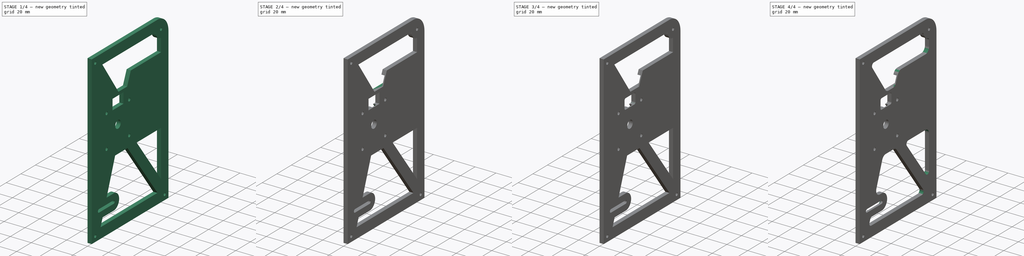
[diagram: build sequence overview — one tinted view per stage of 4, left to right]
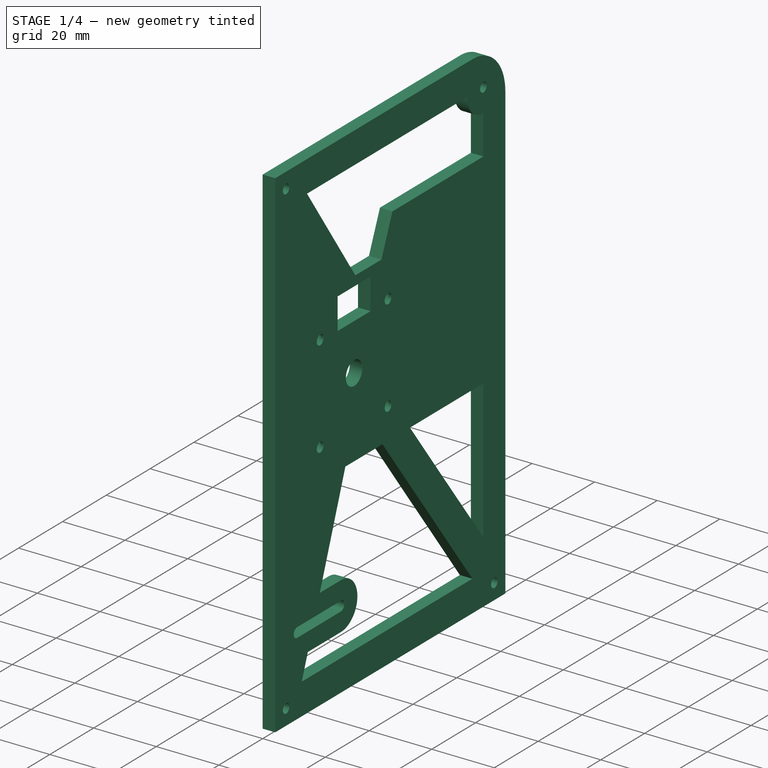
[diagram: stage 1 of 4 — iso view after this stage's code; geometry added in this stage tinted green]
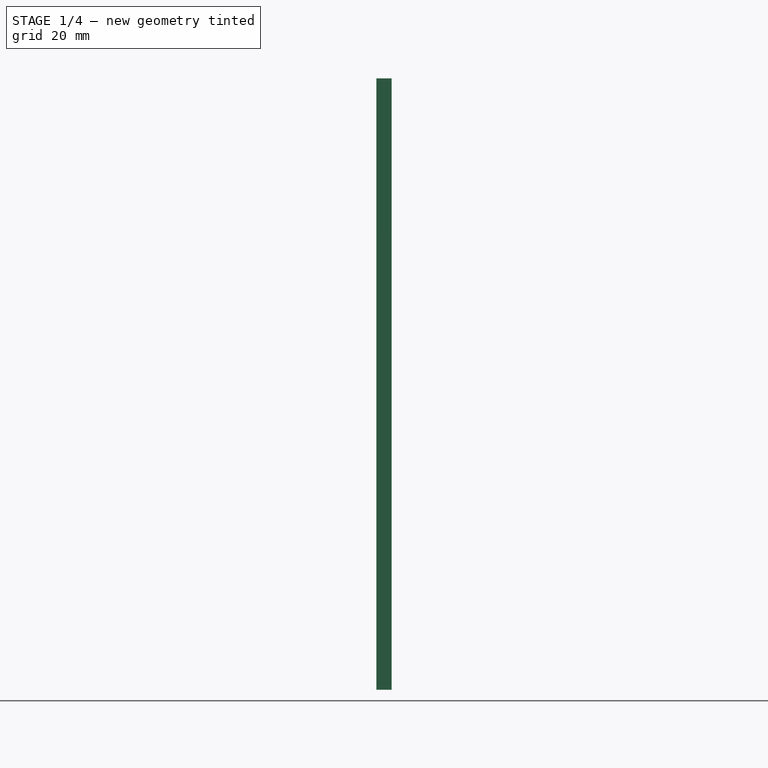
[diagram: stage 1 of 4 — front view after this stage's code; geometry added in this stage tinted green]
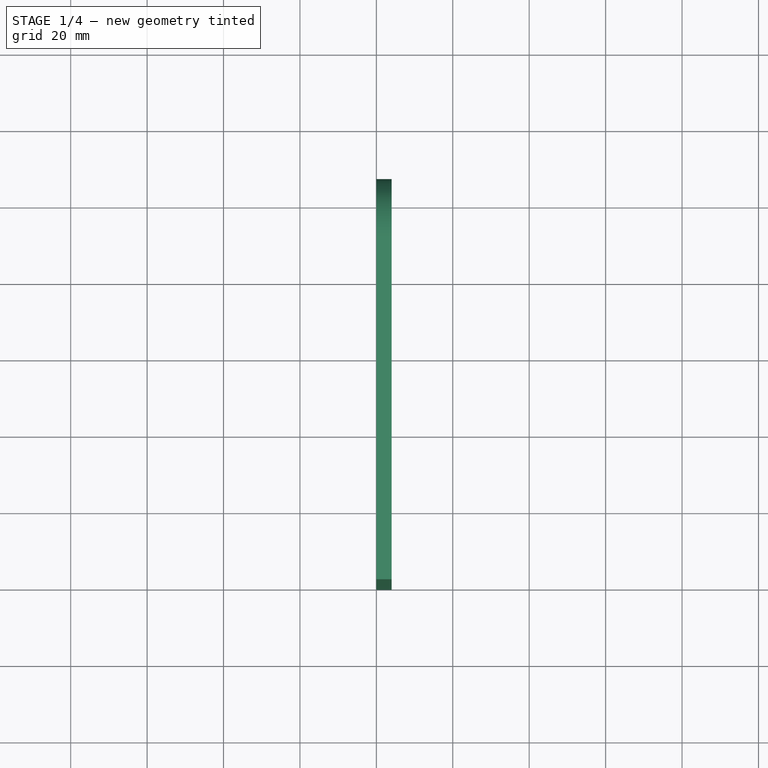
[diagram: stage 1 of 4 — top view after this stage's code; geometry added in this stage tinted green]
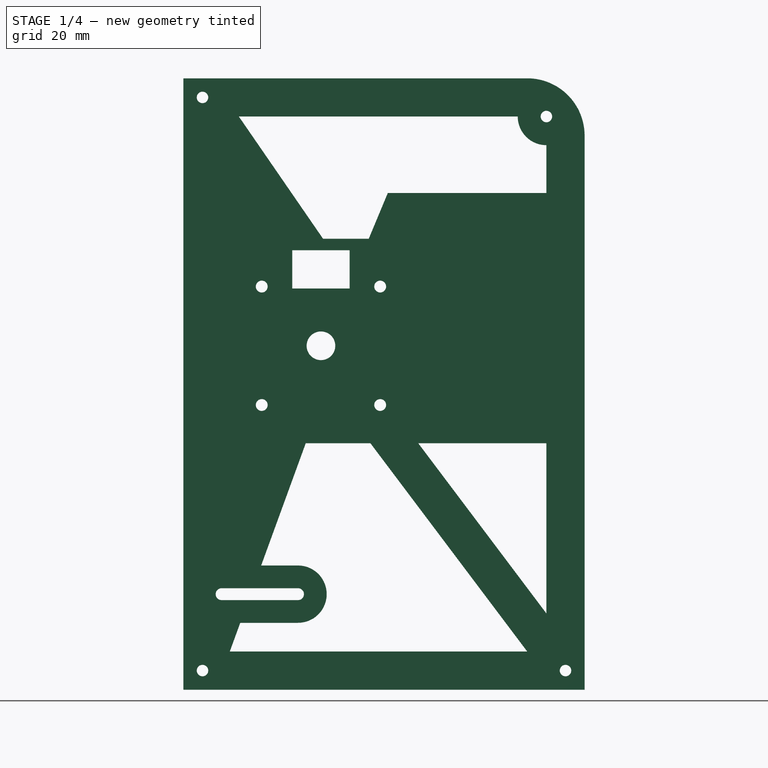
[diagram: stage 1 of 4 — right view after this stage's code; geometry added in this stage tinted green]
FCSTD DOCUMENT  (FreeCAD 1.0R39109 (Git))
Label: sideMotor
License: All rights reserved
LicenseURL: https://en.wikipedia.org/wiki/All_rights_reserved
objects: Sketcher::SketchObject×4, PartDesign::Fillet×4, PartDesign::Chamfer×3, PartDesign::Pad×2, PartDesign::Pocket×2, PartDesign::Body×1
note: 42 computed .brp shape members not serialized (recipe doc carries the construction recipe); baked Part::Feature solids carry a one-line shape summary decoded from their .brp

FEATURE [Sketcher::SketchObject] Sketch
  ArcFitTolerance = 1e-06
  AttachmentSupport = -> [YZ_Plane]
  FullyConstrained = true
  MakeInternals = false
  MapMode = 5
  Placement = pos=(0,0,0) rot=(0.57735,0.57735,0.57735;2.0944rad)
  sketch-geometry (55):
    g0: LineSegment StartX=0 StartY=0 StartZ=0 EndX=105 EndY=0 EndZ=0
    g1: LineSegment StartX=0 StartY=160 StartZ=0 EndX=0 EndY=0 EndZ=0
    g2: Circle CenterX=36 CenterY=90 CenterZ=0 NormalX=0 NormalY=0 NormalZ=1 AngleXU=0 Radius=3.75
    g3: Circle CenterX=5 CenterY=155 CenterZ=0 NormalX=0 NormalY=0 NormalZ=1 AngleXU=0 Radius=1.5
    g4: Circle CenterX=95 CenterY=150 CenterZ=0 NormalX=0 NormalY=0 NormalZ=1 AngleXU=0 Radius=1.5
    g5: Circle CenterX=100 CenterY=5 CenterZ=0 NormalX=0 NormalY=0 NormalZ=1 AngleXU=0 Radius=1.5
    g6: Circle CenterX=5 CenterY=5 CenterZ=0 NormalX=0 NormalY=0 NormalZ=1 AngleXU=0 Radius=1.5
    g7: ArcOfCircle CenterX=10 CenterY=25 CenterZ=0 NormalX=0 NormalY=0 NormalZ=1 AngleXU=0 Radius=1.55 StartAngle=1.5708 EndAngle=4.71239
    g8: ArcOfCircle CenterX=30 CenterY=25 CenterZ=0 NormalX=0 NormalY=0 NormalZ=1 AngleXU=0 Radius=1.55 StartAngle=4.71239 EndAngle=7.85398
    g9: LineSegment StartX=10 StartY=26.55 StartZ=0 EndX=30 EndY=26.55 EndZ=0
    g10: LineSegment StartX=10 StartY=23.45 StartZ=0 EndX=30 EndY=23.45 EndZ=0
    g11: LineSegment [constr] StartX=20.5 StartY=74.5 StartZ=0 EndX=51.5 EndY=74.5 EndZ=0
    g12: LineSegment [constr] StartX=51.5 StartY=74.5 StartZ=0 EndX=51.5 EndY=105.5 EndZ=0
    g13: LineSegment [constr] StartX=51.5 StartY=105.5 StartZ=0 EndX=20.5 EndY=105.5 EndZ=0
    g14: LineSegment [constr] StartX=20.5 StartY=105.5 StartZ=0 EndX=20.5 EndY=74.5 EndZ=0
    g15: GeomPoint [constr] X=36 Y=90 Z=0
    g16: Circle CenterX=20.5 CenterY=105.5 CenterZ=0 NormalX=0 NormalY=0 NormalZ=1 AngleXU=0 Radius=1.55
    g17: Circle CenterX=51.5 CenterY=105.5 CenterZ=0 NormalX=0 NormalY=0 NormalZ=1 AngleXU=0 Radius=1.55
    g18: Circle CenterX=51.5 CenterY=74.5 CenterZ=0 NormalX=0 NormalY=0 NormalZ=1 AngleXU=0 Radius=1.55
    g19: Circle CenterX=20.5 CenterY=74.5 CenterZ=0 NormalX=0 NormalY=0 NormalZ=1 AngleXU=0 Radius=1.55
    g20: LineSegment StartX=0 StartY=160 StartZ=0 EndX=90 EndY=160 EndZ=0
    g21: LineSegment StartX=105 StartY=0 StartZ=0 EndX=105 EndY=145 EndZ=0
    g22: LineSegment [constr] StartX=90 StartY=160 StartZ=0 EndX=105 EndY=160 EndZ=0
    g23: LineSegment [constr] StartX=105 StartY=145 StartZ=0 EndX=105 EndY=160 EndZ=0
    g24: ArcOfCircle CenterX=90 CenterY=145 CenterZ=0 NormalX=0 NormalY=0 NormalZ=1 AngleXU=0 Radius=15 StartAngle=0 EndAngle=1.5708
    g25: LineSegment [constr] StartX=36 StartY=90 StartZ=0 EndX=100 EndY=5 EndZ=0
    g26: LineSegment [constr] StartX=36 StartY=90 StartZ=0 EndX=5 EndY=5 EndZ=0
    g27: ArcOfCircle CenterX=30 CenterY=25 CenterZ=0 NormalX=0 NormalY=0 NormalZ=1 AngleXU=0 Radius=7.5 StartAngle=4.71239 EndAngle=7.85398
    g28: LineSegment StartX=30 StartY=32.5 StartZ=0 EndX=20.3516 EndY=32.5 EndZ=0
    g29: LineSegment StartX=30 StartY=17.5 StartZ=0 EndX=14.881 EndY=17.5 EndZ=0
    g30: LineSegment StartX=61.4588 StartY=64.5 StartZ=0 EndX=95 EndY=64.5 EndZ=0
    g31: LineSegment StartX=95 StartY=64.5 StartZ=0 EndX=95 EndY=19.9531 EndZ=0
    g32: LineSegment StartX=32.0221 StartY=64.5 StartZ=0 EndX=20.3516 EndY=32.5 EndZ=0
    g33: LineSegment StartX=14.881 StartY=17.5 StartZ=0 EndX=12.1457 EndY=10 EndZ=0
    g34: LineSegment StartX=12.1457 StartY=10 StartZ=0 EndX=89.9765 EndY=10 EndZ=0
    g35: LineSegment [constr] StartX=105 StartY=64.5 StartZ=0 EndX=0 EndY=64.5 EndZ=0
    g36: LineSegment StartX=61.4588 StartY=64.5 StartZ=0 EndX=95 EndY=19.9531 EndZ=0
    g37: LineSegment StartX=89.9765 StartY=10 StartZ=0 EndX=48.9412 EndY=64.5 EndZ=0
    g38: LineSegment StartX=48.9412 StartY=64.5 StartZ=0 EndX=32.0221 EndY=64.5 EndZ=0
    g39: LineSegment [constr] StartX=30 StartY=25 StartZ=0 EndX=30 EndY=32.5 EndZ=0
    g40: LineSegment [constr] StartX=30 StartY=25 StartZ=0 EndX=30 EndY=17.5 EndZ=0
    g41: LineSegment [constr] StartX=36 StartY=90 StartZ=0 EndX=36 EndY=110 EndZ=0
    g42: LineSegment StartX=43.5 StartY=105 StartZ=0 EndX=43.5 EndY=115 EndZ=0
    g43: LineSegment StartX=43.5 StartY=115 StartZ=0 EndX=28.5 EndY=115 EndZ=0
    g44: LineSegment StartX=28.5 StartY=115 StartZ=0 EndX=28.5 EndY=105 EndZ=0
    g45: LineSegment StartX=28.5 StartY=105 StartZ=0 EndX=43.5 EndY=105 EndZ=0
    g46: GeomPoint [constr] X=36 Y=110 Z=0
    g47: LineSegment [constr] StartX=36 StartY=110 StartZ=0 EndX=5 EndY=155 EndZ=0
    g48: LineSegment StartX=14.516 StartY=150 StartZ=0 EndX=36.5605 EndY=118 EndZ=0
    g49: LineSegment StartX=14.516 StartY=150 StartZ=0 EndX=87.5 EndY=150 EndZ=0
    g50: LineSegment StartX=48.5 StartY=118 StartZ=0 EndX=36.5605 EndY=118 EndZ=0
    g51: LineSegment StartX=48.5 StartY=118 StartZ=0 EndX=53.5 EndY=130 EndZ=0
    g52: LineSegment StartX=53.5 StartY=130 StartZ=0 EndX=95 EndY=130 EndZ=0
    g53: LineSegment StartX=95 StartY=130 StartZ=0 EndX=95 EndY=142.5 EndZ=0
    g54: ArcOfCircle CenterX=95 CenterY=150 CenterZ=0 NormalX=0 NormalY=0 NormalZ=1 AngleXU=0 Radius=7.5 StartAngle=3.14159 EndAngle=4.71239
  constraints (148):
    c: Coincident(g1,g0)
    c: Horizontal(g0)
    c: Vertical(g1)
    c: Coincident(g0,g-1)
    c: Tangent(g7,g9) = 1.5708
    c: Tangent(g7,g10) = -1.5708
    c: Tangent(g8,g9) = 1.5708
    c: Tangent(g8,g10) = -1.5708
    c: Equal(g7,g8)
    c: Horizontal(g10)
    c: DistanceY(g-1,g2) = 90
    c: DistanceX(g0,g0) = 105
    c: DistanceY(g1,g1) = 160
    c: Diameter(g2) = 7.5
    c: Distance(g2,g1) = 36
    c: Diameter(g3) = 3
    c: Coincident(g11,g12)
    c: Coincident(g12,g13)
    c: Coincident(g13,g14)
    c: Coincident(g14,g11)
    c: Horizontal(g11)
    c: Horizontal(g13)
    c: Vertical(g12)
    c: Vertical(g14)
    c: Symmetric(g13,g11,g15)
    c: Coincident(g15,g2)
    c: DistanceY(g14,g14) = 31
    c: DistanceX(g13,g13) = 31
    c: Coincident(g16,g13)
    c: Diameter(g16) = 3.1
    c: Coincident(g17,g12)
    c: Coincident(g18,g11)
    c: Coincident(g19,g11)
    c: Equal(g16,g17)
    c: Equal(g17,g18)
    c: Equal(g18,g19)
    c: DistanceY(g-1,g7) = 25
    c: Distance(g10,g9) = 3.1
    c: DistanceX(g7,g8) = 20
    c: Distance(g7,g1) = 10
    c: Equal(g3,g4)
    c: Equal(g4,g5)
    c: Equal(g5,g6)
    c: Distance(g3,g1) = 5
    c: Distance(g6,g1) = 5
    c: Distance(g6,g0) = 5
    c: Distance(g5,g0) = 5
    c: Coincident(g20,g1)
    c: Horizontal(g20)
    c: Coincident(g21,g0)
    c: Vertical(g21)
    c: Coincident(g22,g20)
    c: Horizontal(g22)
    c: Coincident(g23,g21)
    c: Vertical(g23)
    c: Coincident(g22,g23)
    c: Coincident(g24,g20)
    c: Coincident(g24,g21)
    c: Distance(g5,g21) = 5
    c: Distance(g3,g20) = 5
    c: DistanceX(g22,g22) = 15
    c: DistanceY(g23,g23) = 15
    c: Distance(g4,g23) = 10
    c: Distance(g4,g22) = 10
    c: Distance(g24,g21) = 15
    c: Coincident(g25,g2)
    c: Coincident(g25,g5)
    c: Coincident(g26,g2)
    c: Coincident(g26,g6)
    c: Coincident(g27,g8)
    c: Coincident(g28,g27)
    c: Horizontal(g28)
    c: Coincident(g29,g27)
    c: Horizontal(g29)
    c: Horizontal(g30)
    c: Coincident(g31,g30)
    c: Vertical(g31)
    c: Coincident(g33,g29)
    c: Coincident(g34,g33)
    c: Horizontal(g34)
    c: Coincident(g32,g28)
    c: Parallel(g32,g26)
    c: Parallel(g33,g26)
    c: PointOnObject(g35,g1)
    c: Horizontal(g35)
    c: PointOnObject(g35,g21)
    c: Coincident(g36,g30)
    c: Coincident(g36,g31)
    c: Coincident(g37,g34)
    c: Coincident(g38,g37)
    c: Horizontal(g38)
    c: Coincident(g38,g32)
    c: PointOnObject(g37,g35)
    c: PointOnObject(g30,g35)
    c: Parallel(g36,g25)
    c: Parallel(g25,g37)
    c: Distance(g36,g25) = 5
    c: Distance(g21,g31) = 10
    c: Distance(g0,g34) = 10
    c: Radius(g27) = 7.5
    c: Distance(g26,g32) = 5
    c: Distance(g26,g33) = 5
    c: Distance(g37,g25) = 5
    c: Coincident(g39,g8)
    c: Coincident(g39,g27)
    c: Vertical(g39)
    c: Coincident(g40,g8)
    c: Coincident(g40,g27)
    c: Vertical(g40)
    c: Distance(g11,g35) = 10
    c: Coincident(g41,g2)
    c: Vertical(g41)
    c: Coincident(g42,g43)
    c: Coincident(g43,g44)
    c: Coincident(g44,g45)
    c: Coincident(g45,g42)
    c: Vertical(g42)
    c: Vertical(g44)
    c: Horizontal(g43)
    c: Horizontal(g45)
    c: Symmetric(g44,g42,g46)
    c: Coincident(g46,g41)
    c: DistanceX(g43,g43) = 15
    c: DistanceY(g44,g44) = 10
    c: DistanceY(g2,g41) = 20
    c: Coincident(g47,g41)
    c: Coincident(g47,g3)
    c: Coincident(g49,g48)
    c: Horizontal(g49)
    c: Parallel(g48,g47)
    c: Distance(g47,g48) = 5
    c: Horizontal(g50)
    c: Coincident(g50,g48)
    c: Distance(g43,g50) = 3
    c: Distance(g20,g49) = 10
    c: Coincident(g51,g50)
    c: Coincident(g52,g51)
    c: Horizontal(g52)
    c: DistanceX(g41,g50) = 12.5
    c: Distance(g52,g50) = 12
    c: DistanceX(g50,g51) = 5
    c: Coincident(g53,g52)
    c: Vertical(g53)
    c: Distance(g21,g53) = 10
    c: Coincident(g54,g4)
    c: Coincident(g54,g53)
    c: Coincident(g54,g49)
    c: Radius(g54) = 7.5
FEATURE [PartDesign::Pad] Pad
  Direction = (1,0,0)
  Length = 4
  Length2 = 10
  Placement = pos=(0,0,0) rot=(1,1,1;2.0944rad)
  Profile = -> Sketch
  ReferenceAxis = -> Sketch [N_Axis]
  Refine = true
  Suppressed = false
  Type = 0
FEATURE [Sketcher::SketchObject] Sketch001
  ArcFitTolerance = 1e-06
  FullyConstrained = true
  MakeInternals = false
  MapMode = 5
  Placement = pos=(-2.82e-14,0,0) rot=(0.57735,0.57735,-0.57735;4.18879rad)
  sketch-geometry (24):
    g0: LineSegment [constr] StartX=105 StartY=-96.6745 StartZ=0 EndX=50 EndY=-96.6745 EndZ=0
    g1: ArcOfCircle [constr] CenterX=50 CenterY=-110.026 CenterZ=0 NormalX=0 NormalY=0 NormalZ=1 AngleXU=0 Radius=13.3514 StartAngle=1.5708 EndAngle=3.06377
    g2: LineSegment [constr] StartX=50 StartY=-96.6745 StartZ=0 EndX=50 EndY=-110.026 EndZ=0
    g3: LineSegment [constr] StartX=36.689 StartY=-108.988 StartZ=0 EndX=36.6113 EndY=-109.985 EndZ=0
    g4: LineSegment [constr] StartX=52.5 StartY=-105.5 StartZ=0 EndX=44.75 EndY=-97.75 EndZ=0
    g5: LineSegment [constr] StartX=37 StartY=-90 StartZ=0 EndX=44.75 EndY=-97.75 EndZ=0
    g6: LineSegment StartX=34.1966 StartY=-108.794 StartZ=0 EndX=34.1189 EndY=-109.791 EndZ=0
    g7: ArcOfCircle CenterX=50 CenterY=-110.026 CenterZ=0 NormalX=0 NormalY=0 NormalZ=1 AngleXU=0 Radius=15.8514 StartAngle=1.5708 EndAngle=3.06377
    g8: LineSegment StartX=105 StartY=-94.1745 StartZ=0 EndX=50 EndY=-94.1745 EndZ=0
    g9: LineSegment StartX=105 StartY=-99.1745 StartZ=0 EndX=50 EndY=-99.1745 EndZ=0
    g10: ArcOfCircle CenterX=50 CenterY=-110.026 CenterZ=0 NormalX=0 NormalY=0 NormalZ=1 AngleXU=0 Radius=10.8514 StartAngle=1.5708 EndAngle=3.06377
    g11: LineSegment StartX=39.1815 StartY=-109.182 StartZ=0 EndX=39.1037 EndY=-110.179 EndZ=0
    g12: LineSegment StartX=105 StartY=-99.1745 StartZ=0 EndX=105 EndY=-94.1745 EndZ=0
    g13: LineSegment StartX=34.1189 StartY=-109.791 StartZ=0 EndX=39.1037 EndY=-110.179 EndZ=0
    g14: LineSegment [constr] StartX=37 StartY=-115 StartZ=0 EndX=37 EndY=-105 EndZ=0
    g15: LineSegment StartX=105 StartY=-124 StartZ=0 EndX=105 EndY=-120 EndZ=0
    g16: LineSegment StartX=105 StartY=-120 StartZ=0 EndX=75 EndY=-120 EndZ=0
    g17: LineSegment StartX=75 StartY=-124 StartZ=0 EndX=105 EndY=-124 EndZ=0
    g18: LineSegment [constr] StartX=105 StartY=-122 StartZ=0 EndX=45 EndY=-122 EndZ=0
    g19: LineSegment StartX=45 StartY=-126 StartZ=0 EndX=65 EndY=-126 EndZ=0
    g20: LineSegment StartX=65 StartY=-118 StartZ=0 EndX=45 EndY=-118 EndZ=0
    g21: LineSegment StartX=75 StartY=-124 StartZ=0 EndX=65 EndY=-126 EndZ=0
    g22: LineSegment StartX=75 StartY=-120 StartZ=0 EndX=65 EndY=-118 EndZ=0
    g23: LineSegment StartX=45 StartY=-118 StartZ=0 EndX=45 EndY=-126 EndZ=0
  constraints (66):
    c: Horizontal(g0)
    c: Coincident(g1,g0)
    c: Coincident(g2,g0)
    c: Vertical(g2)
    c: Coincident(g1,g2)
    c: PointOnObject(g0,g-3)
    c: Tangent(g3,g1) = -1.5708
    c: Coincident(g4,g-5)
    c: PointOnObject(g4,g1)
    c: Coincident(g5,g-6)
    c: Coincident(g5,g4)
    c: Equal(g4,g5)
    c: Parallel(g4,g5)
    c: Tangent(g6,g7) = -1.5708
    c: Tangent(g7,g8) = -1.5708
    c: Tangent(g9,g10) = -1.5708
    c: Tangent(g10,g11) = -1.5708
    c: Parallel(g9,g8)
    c: Parallel(g8,g0)
    c: Parallel(g11,g3)
    c: Parallel(g3,g6)
    c: Coincident(g12,g9)
    c: Coincident(g12,g8)
    c: Vertical(g12)
    c: Coincident(g13,g6)
    c: Coincident(g13,g11)
    c: PointOnObject(g3,g13)
    c: Distance(g8,g9) = 5
    c: Distance(g9,g0) = 2.5
    c: Coincident(g10,g1)
    c: Coincident(g7,g1)
    c: Perpendicular(g13,g3)
    c: PointOnObject(g9,g-3)
    c: Symmetric(g-7,g-7,g14)
    c: Symmetric(g-4,g-4,g14)
    c: PointOnObject(g14,g3)
    c: Distance(g14,g13) = 5
    c: DistanceX(g9,g9) = 55
    c: Coincident(g15,g16)
    c: Coincident(g17,g15)
    c: Vertical(g15)
    c: Horizontal(g16)
    c: Horizontal(g17)
    c: Symmetric(g15,g15,g18)
    c: Horizontal(g18)
    c: Horizontal(g19)
    c: Horizontal(g20)
    c: Coincident(g21,g17)
    c: Coincident(g21,g19)
    c: Coincident(g22,g16)
    c: Coincident(g22,g20)
    c: Coincident(g23,g20)
    c: Coincident(g23,g19)
    c: Vertical(g23)
    c: Distance(g16,g17) = 4
    c: Distance(g20,g19) = 8
    c: PointOnObject(g18,g23)
    c: DistanceX(g17,g17) = 30
    c: Equal(g16,g17)
    c: DistanceX(g21,g21) = 10
    c: DistanceX(g19,g19) = 20
    c: PointOnObject(g15,g-3)
    c: Equal(g20,g19)
    c: Distance(g19,g18) = 4
    c: Distance(g6,g6) = 1
    c: PointOnObject(g-8,g20)
FEATURE [Sketcher::SketchObject] Sketch002
  ArcFitTolerance = 1e-06
  ExternalGeometry = -> [Pad]
  FullyConstrained = true
  MakeInternals = false
  MapMode = 5
  Placement = pos=(-2.82e-14,0,0) rot=(0.57735,0.57735,-0.57735;4.18879rad)
  sketch-geometry (4):
    g0: Circle CenterX=51.5 CenterY=-105.5 CenterZ=0 NormalX=0 NormalY=0 NormalZ=1 AngleXU=0 Radius=3
    g1: Circle CenterX=20.5 CenterY=-105.5 CenterZ=0 NormalX=0 NormalY=0 NormalZ=1 AngleXU=0 Radius=3
    g2: Circle CenterX=20.5 CenterY=-74.5 CenterZ=0 NormalX=0 NormalY=0 NormalZ=1 AngleXU=0 Radius=3
    g3: Circle CenterX=51.5 CenterY=-74.5 CenterZ=0 NormalX=0 NormalY=0 NormalZ=1 AngleXU=0 Radius=3
  constraints (8):
    c: Diameter(g0) = 6
    c: Equal(g1,g2)
    c: Equal(g2,g3)
    c: Equal(g3,g0)
    c: Coincident(g-5,g1)
    c: Coincident(g-4,g2)
    c: Coincident(g-3,g3)
    c: Coincident(g-6,g0)
FEATURE [PartDesign::Pocket] Pocket
  BaseFeature = -> Pad
  Direction = (1,0,0)
  Length = 3
  Length2 = 5
  Placement = pos=(0,0,0) rot=(1,1,1;2.0944rad)
  Profile = -> Sketch002
  ReferenceAxis = -> Sketch002 [N_Axis]
  Refine = true
  Suppressed = false
  Type = 0
FEATURE [PartDesign::Chamfer] Chamfer001
  Angle = 45
  Base = -> Pocket [Edge40,Edge46,Edge39,Edge33]
  BaseFeature = -> Pocket
  ChamferType = 0
  FlipDirection = false
  Placement = pos=(0,0,0) rot=(1,1,1;2.0944rad)
  Refine = true
  Size = 0.5
  Size2 = 1
  SupportTransform = false
  Suppressed = false
  UseAllEdges = false
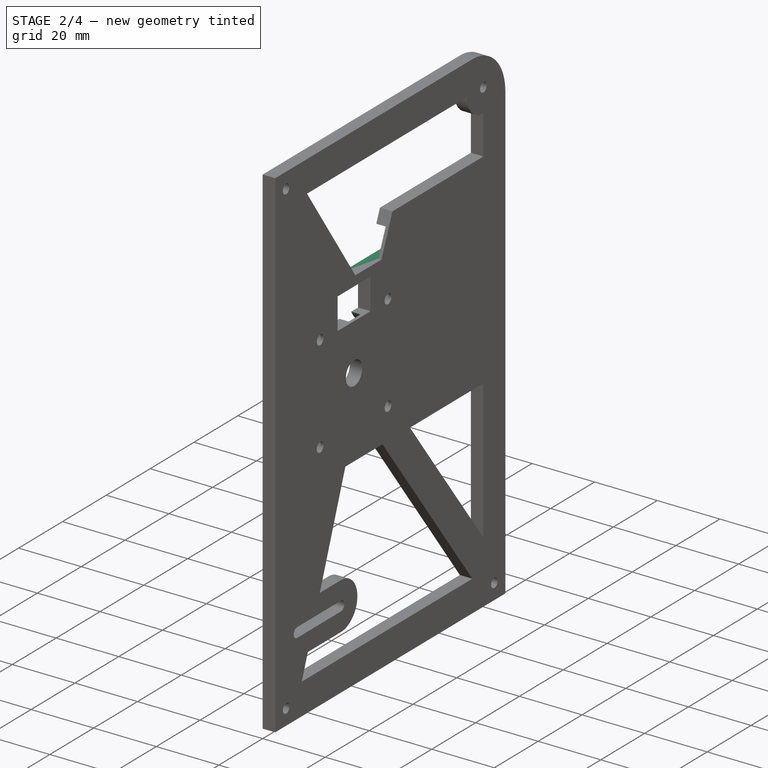
[diagram: stage 2 of 4 — iso view after this stage's code; geometry added in this stage tinted green]
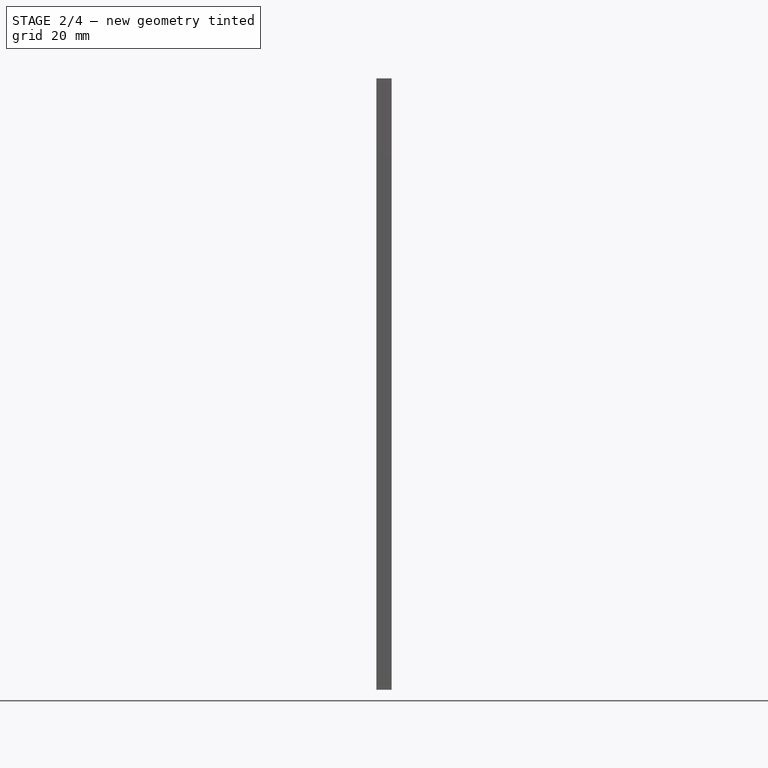
[diagram: stage 2 of 4 — front view after this stage's code; geometry added in this stage tinted green]
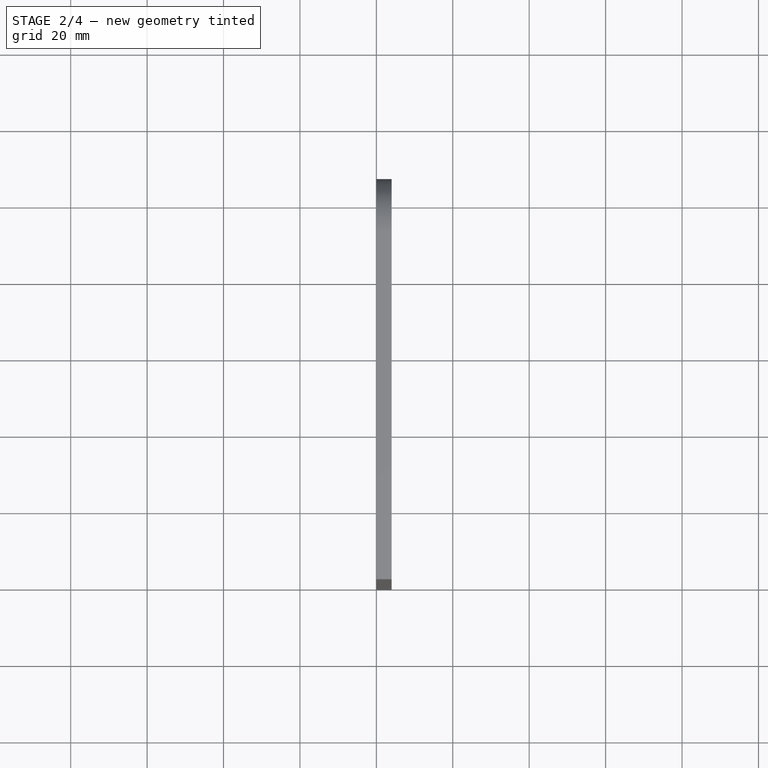
[diagram: stage 2 of 4 — top view after this stage's code; geometry added in this stage tinted green]
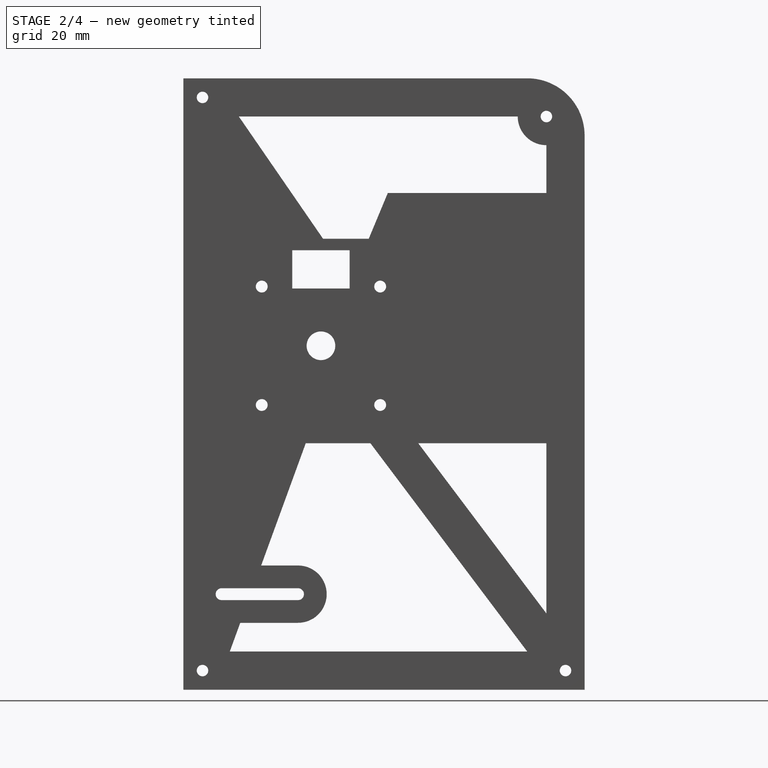
[diagram: stage 2 of 4 — right view after this stage's code; geometry added in this stage tinted green]
FEATURE [PartDesign::Pocket] Pocket001
  BaseFeature = -> Chamfer001
  Direction = (1,0,0)
  Length = 3
  Length2 = 5
  Placement = pos=(0,0,0) rot=(1,1,1;2.0944rad)
  Profile = -> Sketch001
  ReferenceAxis = -> Sketch001 [N_Axis]
  Refine = true
  Suppressed = false
  Type = 0
FEATURE [Sketcher::SketchObject] Sketch003
  ArcFitTolerance = 1e-06
  AttachmentSupport = -> [Pocket001]
  ExternalGeometry = -> [Pocket001]
  FullyConstrained = true
  MakeInternals = false
  MapMode = 5
  Placement = pos=(0,0,0) rot=(0.57735,0.57735,-0.57735;4.18879rad)
  sketch-geometry (22):
    g0: LineSegment StartX=50 StartY=-94.1745 StartZ=0 EndX=50 EndY=-96.6745 EndZ=0
    g1: LineSegment StartX=50 StartY=-96.6745 StartZ=0 EndX=57.5 EndY=-96.6745 EndZ=0
    g2: LineSegment StartX=57.5 StartY=-96.6745 StartZ=0 EndX=57.5 EndY=-94.1745 EndZ=0
    g3: LineSegment StartX=57.5 StartY=-94.1745 StartZ=0 EndX=50 EndY=-94.1745 EndZ=0
    g4: LineSegment StartX=73.75 StartY=-99.1745 StartZ=0 EndX=81.25 EndY=-99.1745 EndZ=0
    g5: LineSegment StartX=81.25 StartY=-99.1745 StartZ=0 EndX=81.25 EndY=-96.6745 EndZ=0
    g6: LineSegment StartX=81.25 StartY=-96.6745 StartZ=0 EndX=73.75 EndY=-96.6745 EndZ=0
    g7: LineSegment StartX=73.75 StartY=-96.6745 StartZ=0 EndX=73.75 EndY=-99.1745 EndZ=0
    g8: LineSegment StartX=105 StartY=-94.1745 StartZ=0 EndX=97.5 EndY=-94.1745 EndZ=0
    g9: LineSegment StartX=97.5 StartY=-94.1745 StartZ=0 EndX=97.5 EndY=-96.6745 EndZ=0
    g10: LineSegment StartX=97.5 StartY=-96.6745 StartZ=0 EndX=105 EndY=-96.6745 EndZ=0
    g11: LineSegment StartX=105 StartY=-96.6745 StartZ=0 EndX=105 EndY=-94.1745 EndZ=0
    g12: LineSegment StartX=105 StartY=-120 StartZ=0 EndX=97.5 EndY=-120 EndZ=0
    g13: LineSegment StartX=97.5 StartY=-120 StartZ=0 EndX=97.5 EndY=-121.75 EndZ=0
    g14: LineSegment StartX=97.5 StartY=-121.75 StartZ=0 EndX=105 EndY=-121.75 EndZ=0
    g15: LineSegment StartX=105 StartY=-121.75 StartZ=0 EndX=105 EndY=-120 EndZ=0
    g16: LineSegment StartX=75 StartY=-124 StartZ=0 EndX=82.5 EndY=-124 EndZ=0
    g17: LineSegment StartX=82.5 StartY=-124 StartZ=0 EndX=82.5 EndY=-122.25 EndZ=0
    g18: LineSegment StartX=82.5 StartY=-122.25 StartZ=0 EndX=75 EndY=-122.25 EndZ=0
    g19: LineSegment StartX=75 StartY=-122.25 StartZ=0 EndX=75 EndY=-124 EndZ=0
    g20: LineSegment [constr] StartX=57.5 StartY=-96.6745 StartZ=0 EndX=73.75 EndY=-96.6745 EndZ=0
    g21: LineSegment [constr] StartX=81.25 StartY=-96.6745 StartZ=0 EndX=97.5 EndY=-96.6745 EndZ=0
  constraints (60):
    c: Coincident(g0,g1)
    c: Coincident(g1,g2)
    c: Coincident(g2,g3)
    c: Coincident(g3,g0)
    c: Vertical(g0)
    c: Vertical(g2)
    c: Horizontal(g1)
    c: Horizontal(g3)
    c: Coincident(g0,g-3)
    c: Coincident(g4,g5)
    c: Coincident(g5,g6)
    c: Coincident(g6,g7)
    c: Coincident(g7,g4)
    c: Horizontal(g4)
    c: Horizontal(g6)
    c: Vertical(g5)
    c: Vertical(g7)
    c: Coincident(g8,g9)
    c: Coincident(g9,g10)
    c: Coincident(g10,g11)
    c: Coincident(g11,g8)
    c: Horizontal(g8)
    c: Horizontal(g10)
    c: Vertical(g9)
    c: Vertical(g11)
    c: Coincident(g8,g-3)
    c: Coincident(g12,g13)
    c: Coincident(g13,g14)
    c: Coincident(g14,g15)
    c: Coincident(g15,g12)
    c: Horizontal(g12)
    c: Horizontal(g14)
    c: Vertical(g13)
    c: Vertical(g15)
    c: Coincident(g12,g-5)
    c: Coincident(g16,g17)
    c: Coincident(g17,g18)
    c: Coincident(g18,g19)
    c: Coincident(g19,g16)
    c: Horizontal(g16)
    c: Horizontal(g18)
    c: Vertical(g17)
    c: Vertical(g19)
    c: Coincident(g16,g-6)
    c: Equal(g2,g7)
    c: Equal(g7,g9)
    c: Equal(g17,g13)
    c: DistanceY(g11,g11) = 2.5
    c: DistanceX(g3,g3) = 7.5
    c: DistanceX(g4,g4) = 7.5
    c: DistanceX(g12,g12) = 7.5
    c: DistanceX(g16,g16) = 7.5
    c: DistanceY(g15,g15) = 1.75
    c: DistanceX(g8,g8) = 7.5
    c: Coincident(g20,g1)
    c: Coincident(g20,g6)
    c: Coincident(g21,g5)
    c: Coincident(g21,g9)
    c: Horizontal(g21)
    c: Equal(g21,g20)
FEATURE [PartDesign::Pad] Pad001
  BaseFeature = -> Pocket001
  Direction = (-1,0,0)
  Length = 1
  Length2 = 10
  Placement = pos=(0,0,0) rot=(1,1,1;2.0944rad)
  Profile = -> Sketch003
  ReferenceAxis = -> Sketch003 [N_Axis]
  Refine = true
  Reversed = true
  Suppressed = false
  Type = 0
FEATURE [PartDesign::Chamfer] Chamfer002
  Angle = 45
  Base = -> Pad001 [Edge168,Edge144,Edge172,Edge90,Edge123]
  BaseFeature = -> Pad001
  ChamferType = 1
  FlipDirection = false
  Placement = pos=(0,0,0) rot=(1,1,1;2.0944rad)
  Refine = true
  Size = 0.8
  Size2 = 1.5
  SupportTransform = false
  Suppressed = false
  UseAllEdges = false
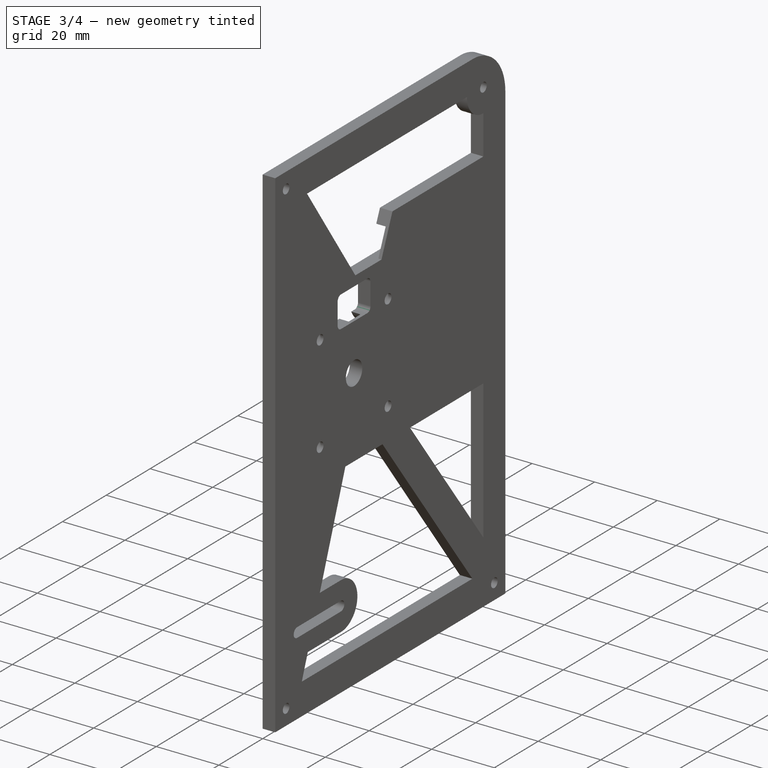
[diagram: stage 3 of 4 — iso view after this stage's code; geometry added in this stage tinted green]
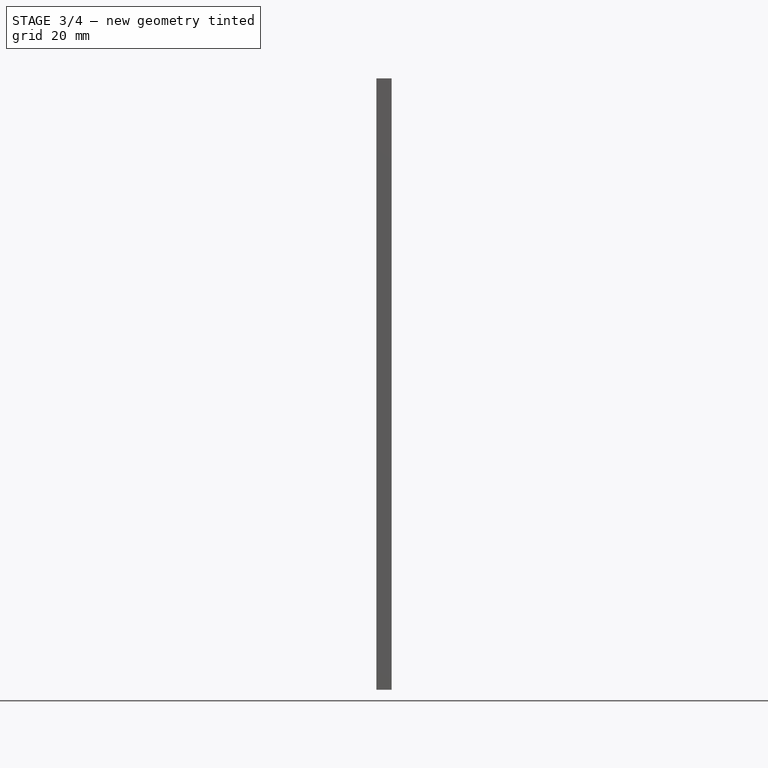
[diagram: stage 3 of 4 — front view after this stage's code; geometry added in this stage tinted green]
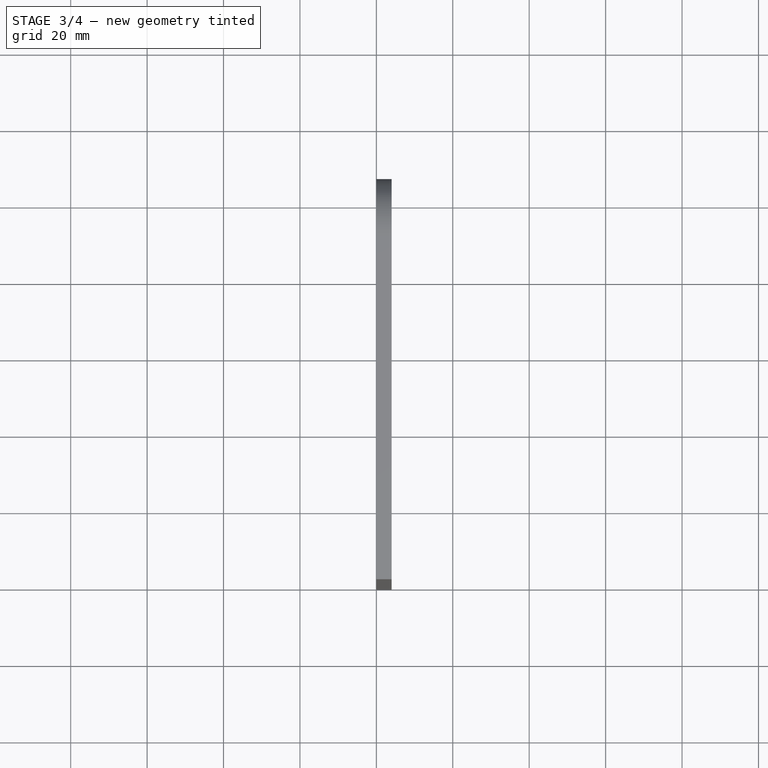
[diagram: stage 3 of 4 — top view after this stage's code; geometry added in this stage tinted green]
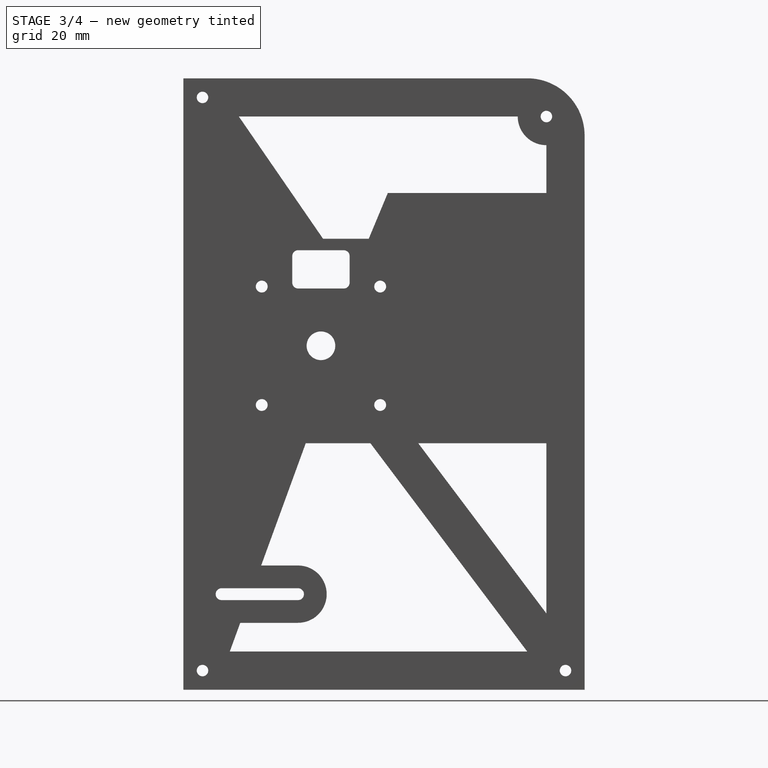
[diagram: stage 3 of 4 — right view after this stage's code; geometry added in this stage tinted green]
FEATURE [PartDesign::Fillet] Fillet
  Base = -> Chamfer002 [Edge196,Edge198,Edge197,Edge199]
  BaseFeature = -> Chamfer002
  Placement = pos=(0,0,0) rot=(1,1,1;2.0944rad)
  Radius = 1.5
  Refine = true
  SupportTransform = false
  Suppressed = false
  UseAllEdges = false
FEATURE [PartDesign::Fillet] Fillet001
  Base = -> Fillet [Edge185,Edge190,Edge120,Edge157,Edge94,Edge132,Edge108,Edge114,Edge97,Edge136]
  BaseFeature = -> Fillet
  Placement = pos=(0,0,0) rot=(1,1,1;2.0944rad)
  Radius = 1
  Refine = true
  SupportTransform = false
  Suppressed = false
  UseAllEdges = false
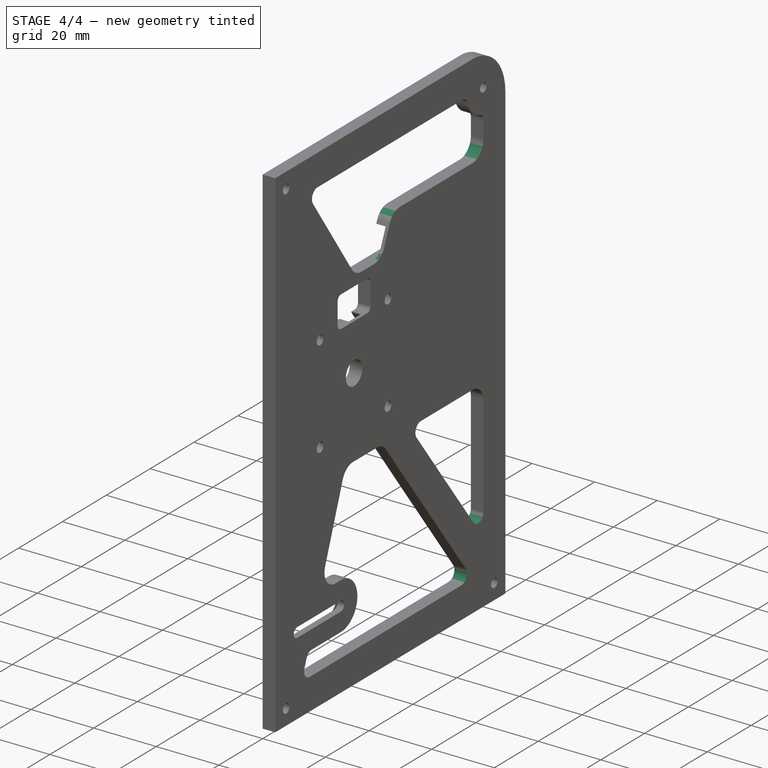
[diagram: stage 4 of 4 — iso view after this stage's code; geometry added in this stage tinted green]
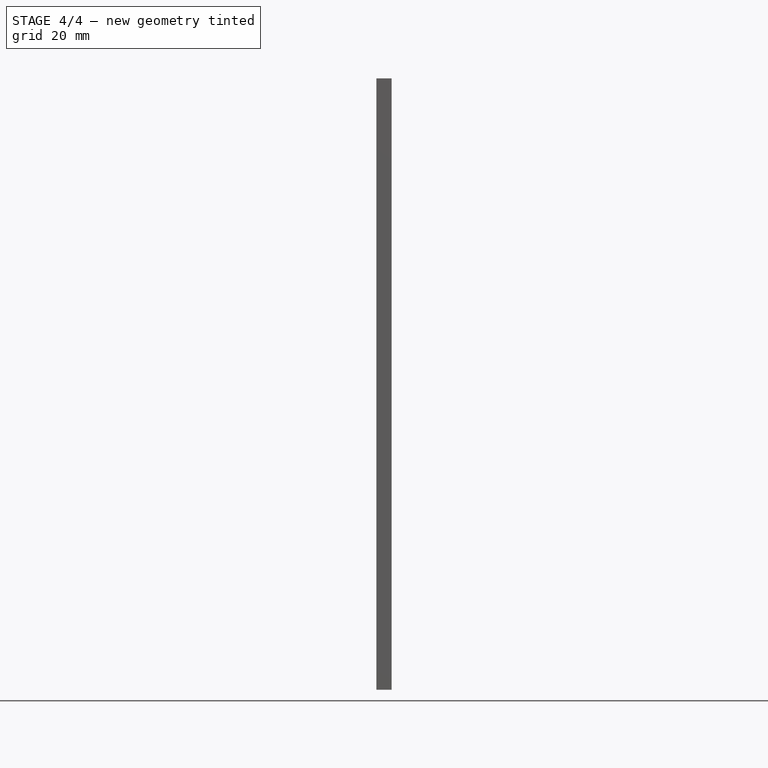
[diagram: stage 4 of 4 — front view after this stage's code; geometry added in this stage tinted green]
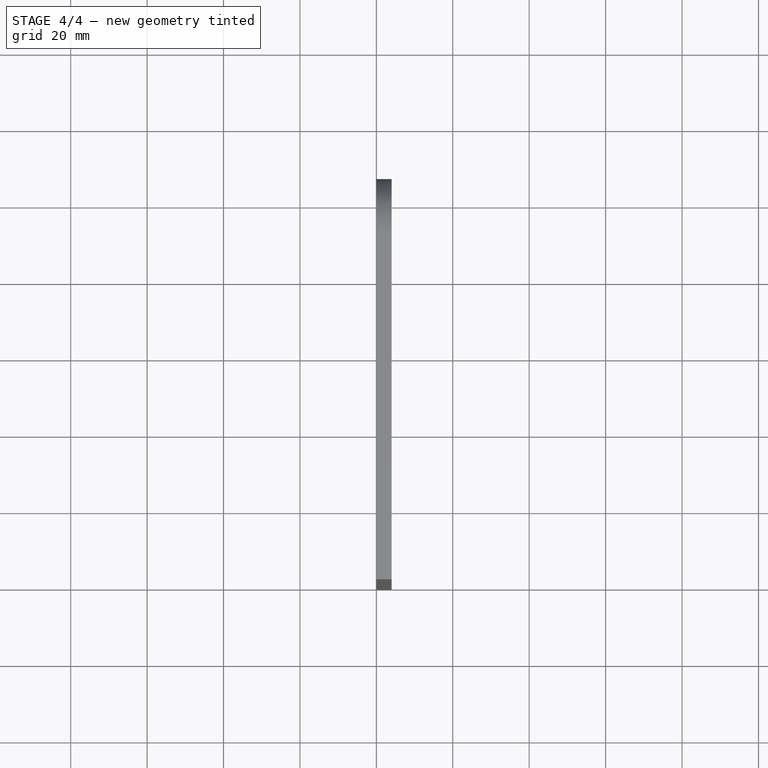
[diagram: stage 4 of 4 — top view after this stage's code; geometry added in this stage tinted green]
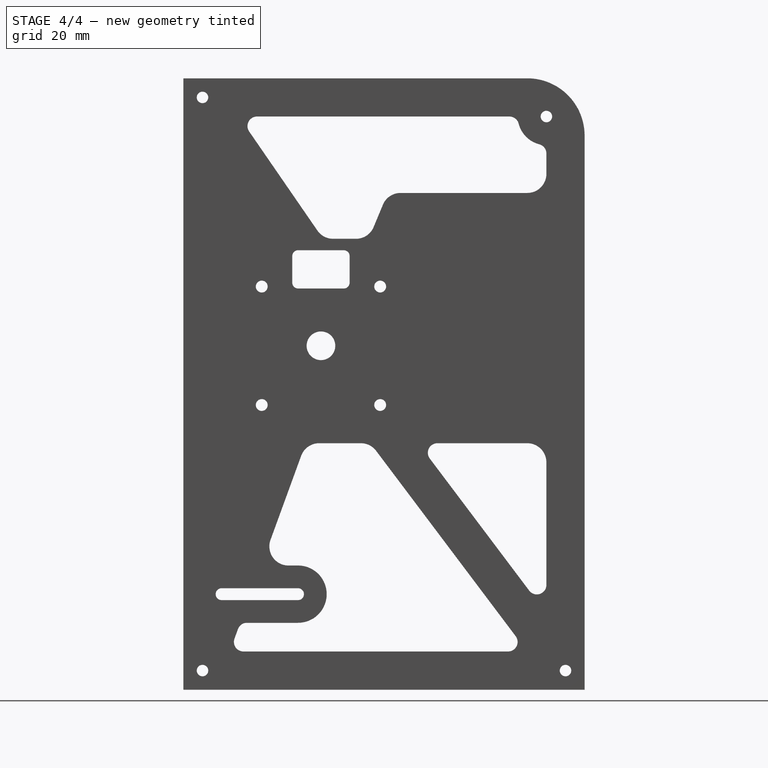
[diagram: stage 4 of 4 — right view after this stage's code; geometry added in this stage tinted green]
FEATURE [PartDesign::Fillet] Fillet002
  Base = -> Fillet001 [Edge168,Edge173,Edge152,Edge150,Edge235,Edge223,Edge225,Edge227]
  BaseFeature = -> Fillet001
  Placement = pos=(0,0,0) rot=(1,1,1;2.0944rad)
  Radius = 5
  Refine = true
  SupportTransform = false
  Suppressed = false
  UseAllEdges = false
FEATURE [PartDesign::Fillet] Fillet003
  Base = -> Fillet002 [Edge282,Edge268,Edge264,Edge286,Edge260,Edge98,Edge109,Edge105]
  BaseFeature = -> Fillet002
  Placement = pos=(0,0,0) rot=(1,1,1;2.0944rad)
  Radius = 2.5
  Refine = true
  SupportTransform = false
  Suppressed = false
  UseAllEdges = false
FEATURE [PartDesign::Chamfer] Chamfer003
  Angle = 45
  Base = -> Fillet003 [Edge66,Edge75,Edge74,Edge72,Edge73]
  BaseFeature = -> Fillet003
  ChamferType = 0
  FlipDirection = false
  Placement = pos=(0,0,0) rot=(1,1,1;2.0944rad)
  Refine = true
  Size = 2
  Size2 = 1
  SupportTransform = false
  Suppressed = false
  UseAllEdges = false
FEATURE [PartDesign::Body] Body
  AllowCompound = false
  Group = -> [Sketch,Pad,Sketch001,Sketch002,Pocket,Chamfer001,Pocket001,Sketch003,Pad001,Chamfer002,Fillet,Fillet001,Fillet002,Fillet003,Chamfer003]
  Origin = -> Origin
  Tip = -> Chamfer003
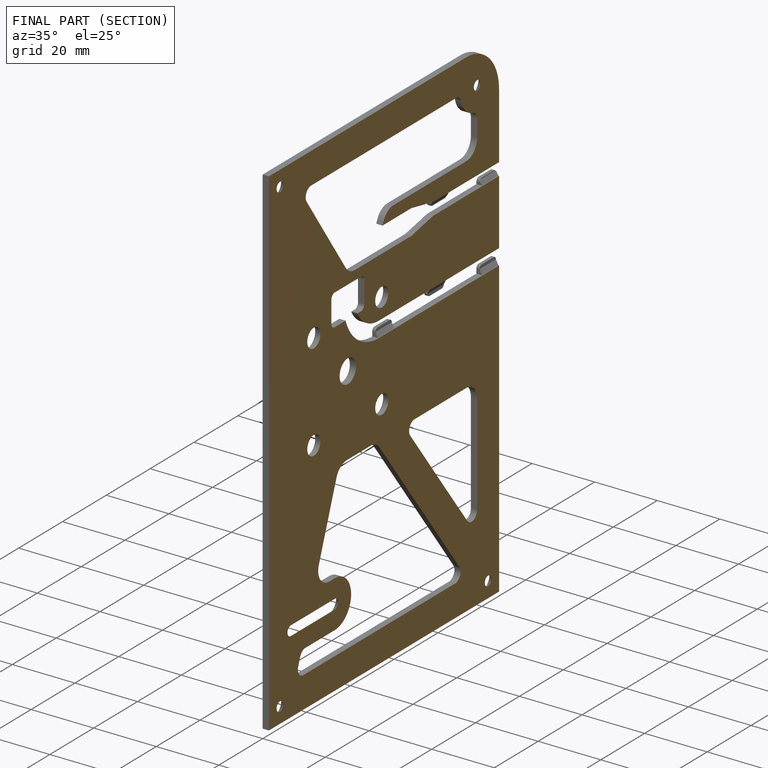
[diagram: finished part — half-section view (interior)]
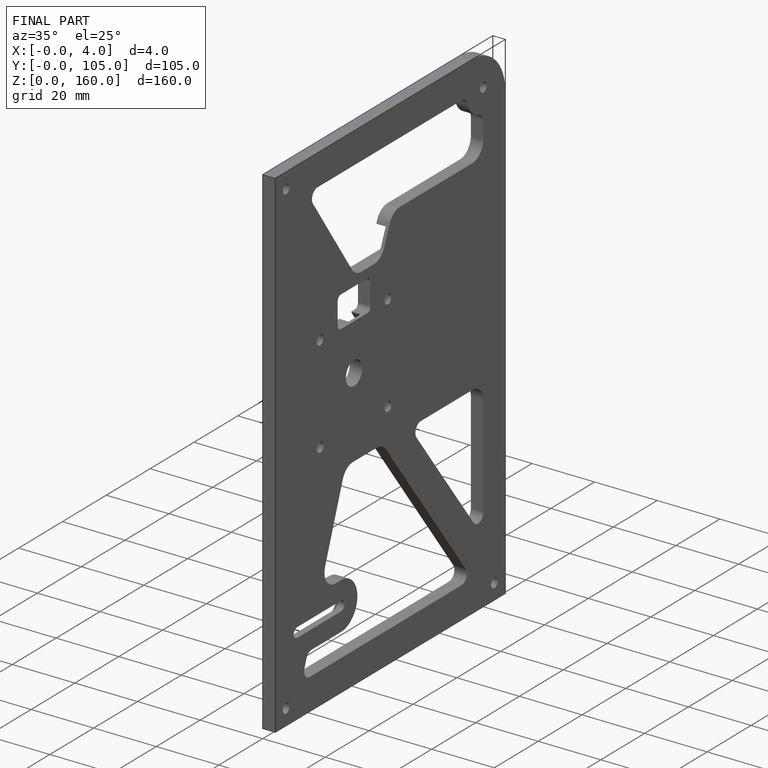
[diagram: finished part — iso view with bounding-box wireframe]
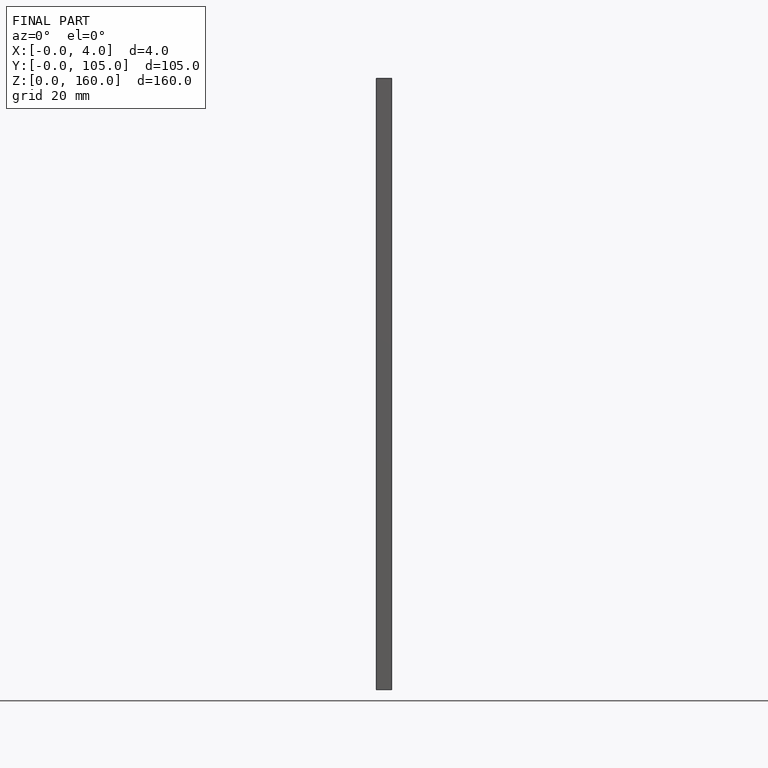
[diagram: finished part — front view with bounding-box wireframe]
